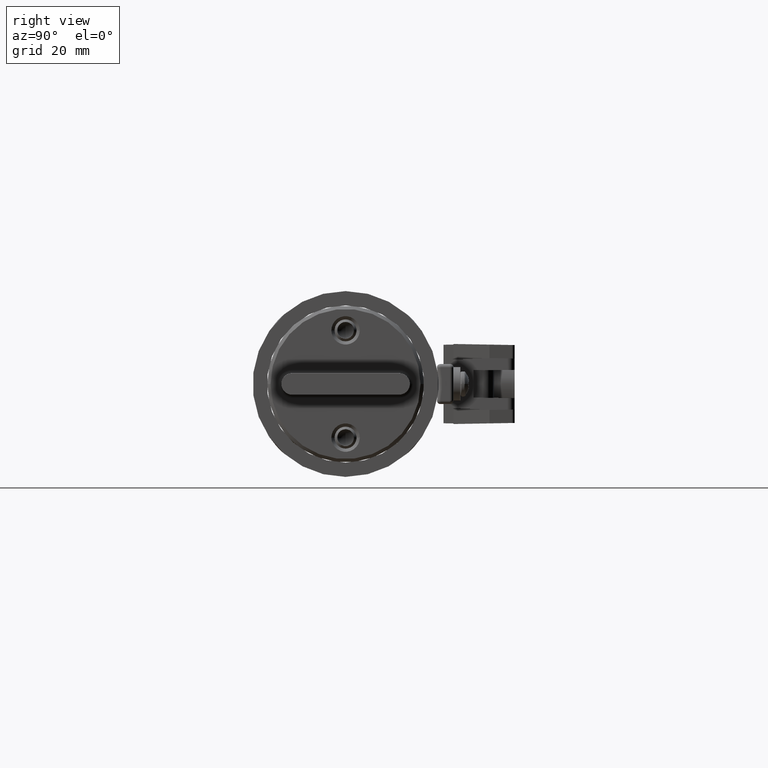
[diagram: clean part render]
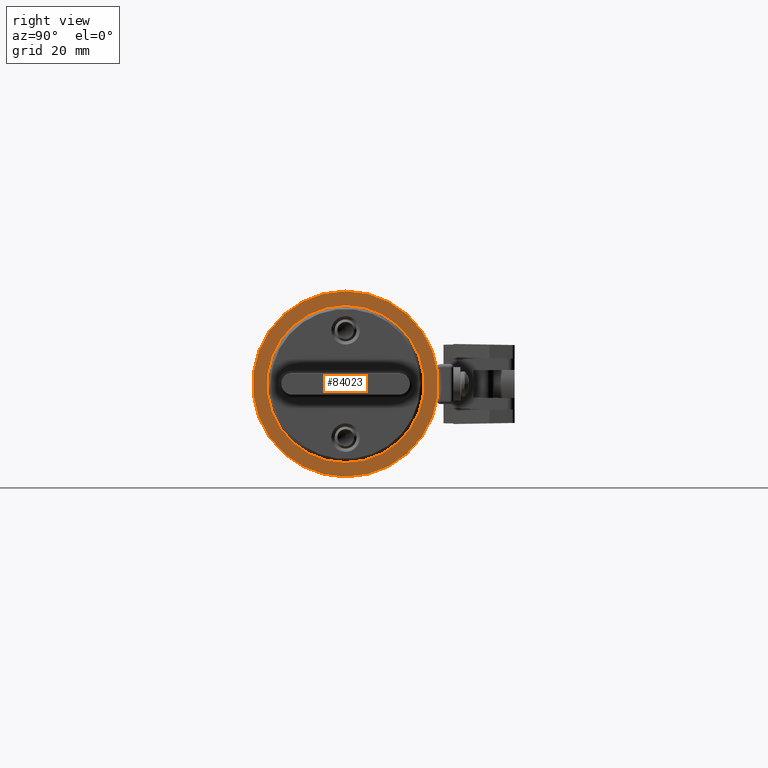
[diagram: same view with one face highlighted and labeled with its STEP entity id]
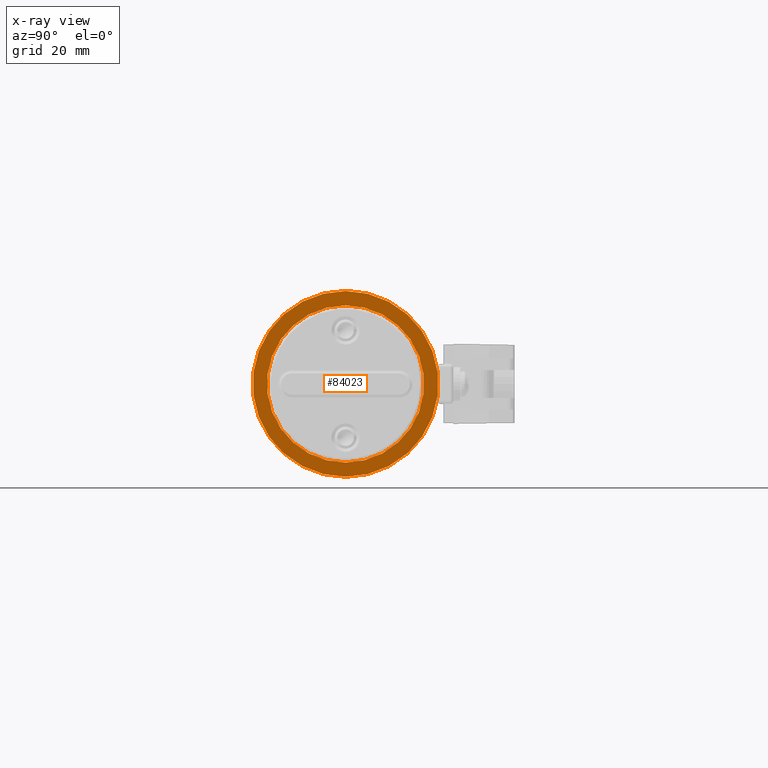
[diagram: x-ray of the same camera — body ghosted, the highlighted face saturated]
A machine part, right view. The second image highlights one B-rep face of the part: STEP entity #84023.
The next image is the same camera in x-ray: the body ghosted, the highlighted face saturated — about 0% of this face is hidden behind the body in this view.
In plain terms, the highlighted planar face has unit normal (1, 0, 0).
Its self-contained STEP definition (entity closure, byte-faithful):
#1241 = DIRECTION ( 'NONE',  ( 0.0000000000000000000, 0.0000000000000000000, -1.000000000000000000 ) ) ;
#6191 = ORIENTED_EDGE ( 'NONE', *, *, #26161, .F. ) ;
#9580 = AXIS2_PLACEMENT_3D ( 'NONE', #98939, #45013, #108046 ) ;
#10244 = AXIS2_PLACEMENT_3D ( 'NONE', #86445, #32476, #95483 ) ;
#13363 = VERTEX_POINT ( 'NONE', #44814 ) ;
#24024 = CARTESIAN_POINT ( 'NONE',  ( 1.500000000000000200, 9.950255243072241900E-017, -0.8125000000000000000 ) ) ;
#26161 = EDGE_CURVE ( 'NONE', #13363, #85739, #96607, .T. ) ;
#31421 = AXIS2_PLACEMENT_3D ( 'NONE', #109290, #55445, #1241 ) ;
#32476 = DIRECTION ( 'NONE',  ( 1.000000000000000000, 0.0000000000000000000, 0.0000000000000000000 ) ) ;
#33638 = EDGE_CURVE ( 'NONE', #65924, #111819, #74826, .T. ) ;
#36251 = ORIENTED_EDGE ( 'NONE', *, *, #33638, .T. ) ;
#41593 = CARTESIAN_POINT ( 'NONE',  ( 1.500000000000000200, 0.0000000000000000000, 0.0000000000000000000 ) ) ;
#41876 = CARTESIAN_POINT ( 'NONE',  ( 1.500000000000000200, 0.0000000000000000000, 0.8125000000000000000 ) ) ;
#44814 = CARTESIAN_POINT ( 'NONE',  ( 1.500000000000000200, 8.419446744138051300E-017, -0.6875000000000000000 ) ) ;
#45013 = DIRECTION ( 'NONE',  ( 1.000000000000000000, 0.0000000000000000000, 0.0000000000000000000 ) ) ;
#50672 = DIRECTION ( 'NONE',  ( 0.0000000000000000000, 0.0000000000000000000, -1.000000000000000000 ) ) ;
#51152 = DIRECTION ( 'NONE',  ( 1.000000000000000000, 0.0000000000000000000, 0.0000000000000000000 ) ) ;
#55445 = DIRECTION ( 'NONE',  ( 1.000000000000000000, 0.0000000000000000000, 0.0000000000000000000 ) ) ;
#56613 = CIRCLE ( 'NONE', #114528, 0.6875000000000000000 ) ;
#65924 = VERTEX_POINT ( 'NONE', #41876 ) ;
#72574 = AXIS2_PLACEMENT_3D ( 'NONE', #105065, #51152, #114171 ) ;
#72598 = FACE_OUTER_BOUND ( 'NONE', #100390, .T. ) ;
#72910 = ORIENTED_EDGE ( 'NONE', *, *, #105203, .F. ) ;
#73403 = ORIENTED_EDGE ( 'NONE', *, *, #94638, .T. ) ;
#74826 = CIRCLE ( 'NONE', #9580, 0.8125000000000000000 ) ;
#84023 = ADVANCED_FACE ( 'NONE', ( #72598, #114930 ), #104219, .T. ) ;
#84842 = CARTESIAN_POINT ( 'NONE',  ( 1.500000000000000200, 0.0000000000000000000, 0.6875000000000000000 ) ) ;
#85739 = VERTEX_POINT ( 'NONE', #84842 ) ;
#86445 = CARTESIAN_POINT ( 'NONE',  ( 1.500000000000000200, 0.0000000000000000000, 0.0000000000000000000 ) ) ;
#94638 = EDGE_CURVE ( 'NONE', #111819, #65924, #104195, .T. ) ;
#95483 = DIRECTION ( 'NONE',  ( 0.0000000000000000000, 0.0000000000000000000, -1.000000000000000000 ) ) ;
#96607 = CIRCLE ( 'NONE', #72574, 0.6875000000000000000 ) ;
#98939 = CARTESIAN_POINT ( 'NONE',  ( 1.500000000000000200, 0.0000000000000000000, 0.0000000000000000000 ) ) ;
#100390 = EDGE_LOOP ( 'NONE', ( #36251, #73403 ) ) ;
#104195 = CIRCLE ( 'NONE', #31421, 0.8125000000000000000 ) ;
#104219 = PLANE ( 'NONE',  #10244 ) ;
#104602 = DIRECTION ( 'NONE',  ( 1.000000000000000000, 0.0000000000000000000, 0.0000000000000000000 ) ) ;
#105065 = CARTESIAN_POINT ( 'NONE',  ( 1.500000000000000200, 0.0000000000000000000, 0.0000000000000000000 ) ) ;
#105203 = EDGE_CURVE ( 'NONE', #85739, #13363, #56613, .T. ) ;
#108046 = DIRECTION ( 'NONE',  ( 0.0000000000000000000, 0.0000000000000000000, -1.000000000000000000 ) ) ;
#109290 = CARTESIAN_POINT ( 'NONE',  ( 1.500000000000000200, 0.0000000000000000000, 0.0000000000000000000 ) ) ;
#111819 = VERTEX_POINT ( 'NONE', #24024 ) ;
#112761 = EDGE_LOOP ( 'NONE', ( #72910, #6191 ) ) ;
#114171 = DIRECTION ( 'NONE',  ( 0.0000000000000000000, 0.0000000000000000000, -1.000000000000000000 ) ) ;
#114528 = AXIS2_PLACEMENT_3D ( 'NONE', #41593, #104602, #50672 ) ;
#114930 = FACE_BOUND ( 'NONE', #112761, .T. ) ;